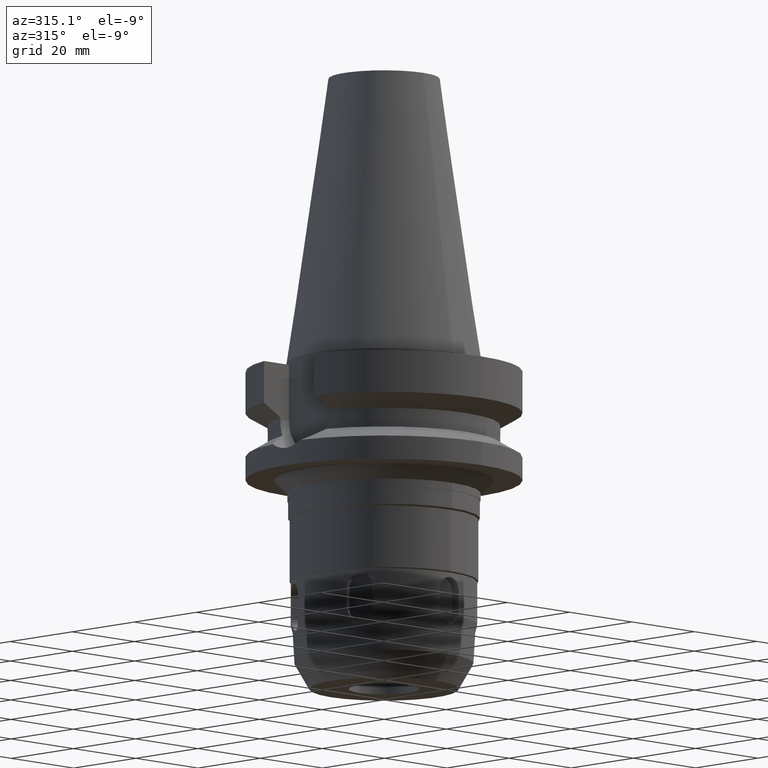
[diagram: clean part render]
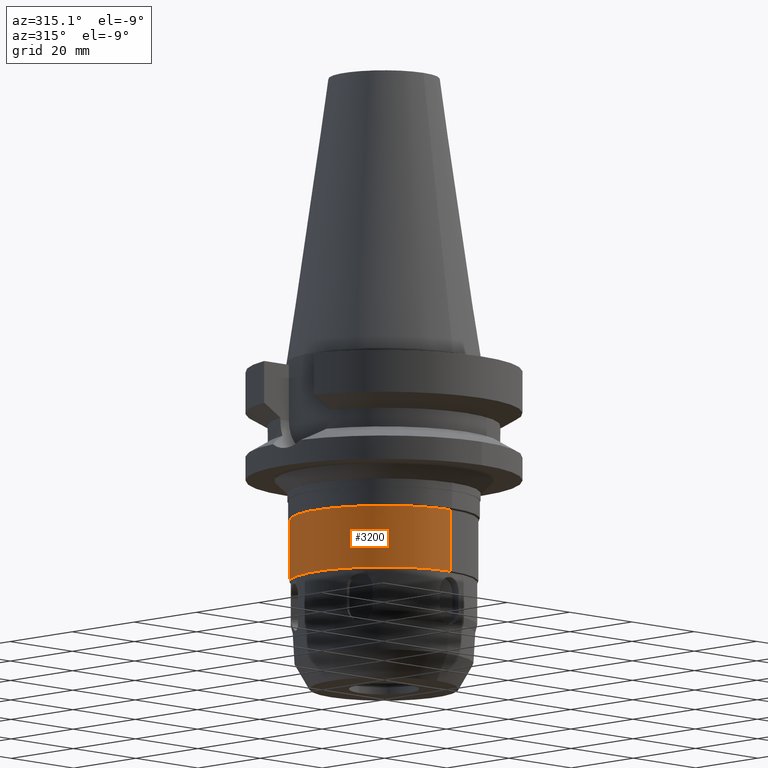
[diagram: same view with one face highlighted and labeled with its STEP entity id]
A machine part, auxiliary view. The second image highlights one B-rep face of the part: STEP entity #3200.
In plain terms, the highlighted cylindrical surface (partial cylindrical patch) has radius 21.5 mm, axis along (0, 0, -1).
Its self-contained STEP definition (entity closure, byte-faithful):
#788=CARTESIAN_POINT('',(0.E0,0.E0,-3.615E1));
#789=DIRECTION('',(0.E0,0.E0,-1.E0));
#790=DIRECTION('',(0.E0,-1.E0,0.E0));
#791=AXIS2_PLACEMENT_3D('',#788,#789,#790);
#796=DIRECTION('',(0.E0,0.E0,-1.E0));
#797=VECTOR('',#796,1.415E1);
#798=CARTESIAN_POINT('',(0.E0,-2.15E1,-3.615E1));
#799=LINE('',#798,#797);
#803=DIRECTION('',(0.E0,0.E0,-1.E0));
#804=VECTOR('',#803,1.415E1);
#805=CARTESIAN_POINT('',(0.E0,2.15E1,-3.615E1));
#806=LINE('',#805,#804);
#833=CARTESIAN_POINT('',(0.E0,0.E0,-5.03E1));
#834=DIRECTION('',(0.E0,0.E0,1.E0));
#835=DIRECTION('',(0.E0,1.E0,0.E0));
#836=AXIS2_PLACEMENT_3D('',#833,#834,#835);
#2466=CARTESIAN_POINT('',(0.E0,2.15E1,-5.03E1));
#2467=VERTEX_POINT('',#2466);
#2468=CARTESIAN_POINT('',(0.E0,-2.15E1,-5.03E1));
#2469=VERTEX_POINT('',#2468);
#2470=CARTESIAN_POINT('',(0.E0,2.15E1,-3.615E1));
#2471=VERTEX_POINT('',#2470);
#2472=CARTESIAN_POINT('',(0.E0,-2.15E1,-3.615E1));
#2473=VERTEX_POINT('',#2472);
#3186=CARTESIAN_POINT('',(0.E0,2.111536011090E-14,7.242E1));
#3187=DIRECTION('',(0.E0,0.E0,-1.E0));
#3188=DIRECTION('',(0.E0,-1.E0,0.E0));
#3189=AXIS2_PLACEMENT_3D('',#3186,#3187,#3188);
#3190=CYLINDRICAL_SURFACE('',#3189,2.15E1);
#3192=ORIENTED_EDGE('',*,*,#3191,.F.);
#3193=ORIENTED_EDGE('',*,*,#3181,.F.);
#3195=ORIENTED_EDGE('',*,*,#3194,.T.);
#3197=ORIENTED_EDGE('',*,*,#3196,.F.);
#3198=EDGE_LOOP('',(#3192,#3193,#3195,#3197));
#3199=FACE_OUTER_BOUND('',#3198,.F.);
#792=CIRCLE('',#791,2.15E1);
#837=CIRCLE('',#836,2.15E1);
#3181=EDGE_CURVE('',#2473,#2471,#792,.T.);
#3191=EDGE_CURVE('',#2471,#2467,#806,.T.);
#3194=EDGE_CURVE('',#2473,#2469,#799,.T.);
#3196=EDGE_CURVE('',#2467,#2469,#837,.T.);
#3200=ADVANCED_FACE('',(#3199),#3190,.T.);